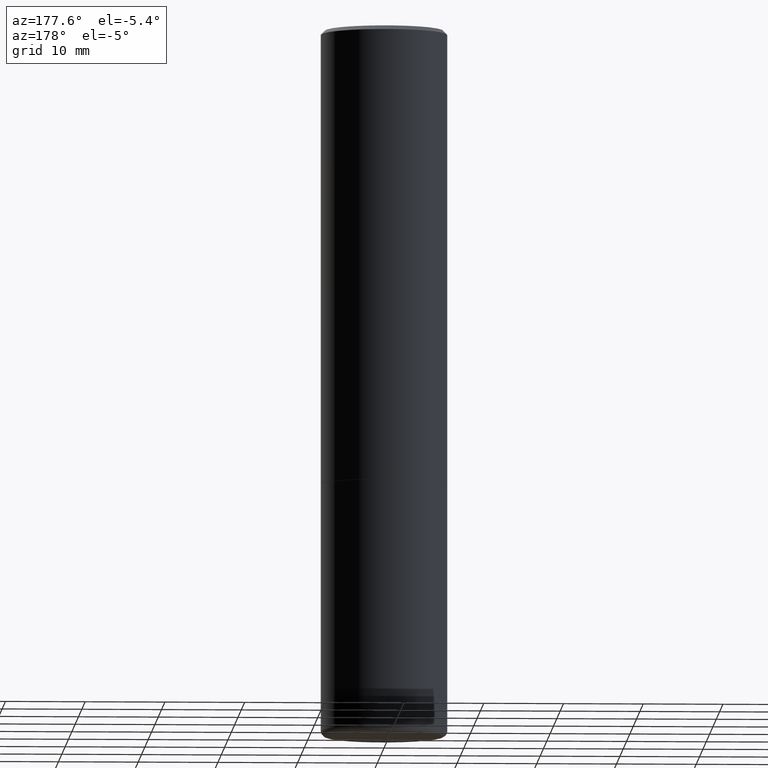
[diagram: clean part render]
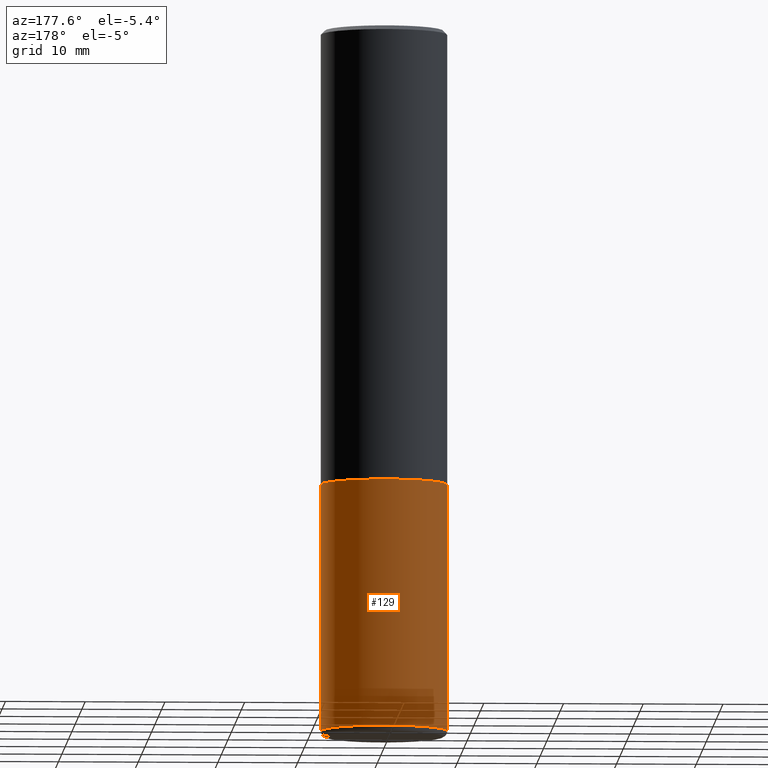
[diagram: same view with one face highlighted and labeled with its STEP entity id]
A machine part, auxiliary view. The second image highlights one B-rep face of the part: STEP entity #129.
In plain terms, the highlighted cylindrical surface (partial cylindrical patch) has radius 7.9375 mm, axis along (-0, 0, 1).
Its self-contained STEP definition (entity closure, byte-faithful):
#1 = CIRCLE ( 'NONE', #438, 0.3125000000000000000 ) ;
#28 = ORIENTED_EDGE ( 'NONE', *, *, #368, .F. ) ;
#58 = LINE ( 'NONE', #165, #60 ) ;
#60 = VECTOR ( 'NONE', #128, 39.37007874015748143 ) ;
#61 = VERTEX_POINT ( 'NONE', #132 ) ;
#66 = DIRECTION ( 'NONE',  ( 1.000000000000000000, -6.982962677686266711E-15, 4.876176775795936353E-29 ) ) ;
#77 = VERTEX_POINT ( 'NONE', #133 ) ;
#87 = ORIENTED_EDGE ( 'NONE', *, *, #397, .T. ) ;
#93 = DIRECTION ( 'NONE',  ( -2.445468806185136597E-29, 3.491481338843145583E-15, 1.000000000000000000 ) ) ;
#95 = EDGE_CURVE ( 'NONE', #77, #189, #423, .T. ) ;
#107 = CARTESIAN_POINT ( 'NONE',  ( -0.3125000000000000000, -7.765262354148530218E-15, -3.470041113957361922 ) ) ;
#118 = VERTEX_POINT ( 'NONE', #437 ) ;
#128 = DIRECTION ( 'NONE',  ( -2.445468806185136877E-29, 3.491481338843145188E-15, 1.000000000000000000 ) ) ;
#129 = ADVANCED_FACE ( 'NONE', ( #307 ), #138, .T. ) ;
#132 = CARTESIAN_POINT ( 'NONE',  ( -0.3125000000000000000, -7.765262354148530218E-15, -2.249999999999999556 ) ) ;
#133 = CARTESIAN_POINT ( 'NONE',  ( 0.3125000000000000000, -1.429775963117756807E-14, -3.470041113957361922 ) ) ;
#134 = VECTOR ( 'NONE', #228, 39.37007874015748143 ) ;
#138 = CYLINDRICAL_SURFACE ( 'NONE', #383, 0.3125000000000000000 ) ;
#140 = CARTESIAN_POINT ( 'NONE',  ( 0.000000000000000000, 0.000000000000000000, 0.000000000000000000 ) ) ;
#154 = CARTESIAN_POINT ( 'NONE',  ( 5.502304813916556222E-29, -7.855833012397075293E-15, -2.249999999999999556 ) ) ;
#165 = CARTESIAN_POINT ( 'NONE',  ( -0.3125000000000000000, 2.220446049250313081E-15, -1.537167215704658232E-29 ) ) ;
#184 = DIRECTION ( 'NONE',  ( -2.445468806185136597E-29, 3.491481338843145583E-15, 1.000000000000000000 ) ) ;
#185 = LINE ( 'NONE', #272, #134 ) ;
#189 = VERTEX_POINT ( 'NONE', #107 ) ;
#191 = EDGE_LOOP ( 'NONE', ( #261, #87, #336, #28 ) ) ;
#228 = DIRECTION ( 'NONE',  ( -2.445468806185136877E-29, 3.491481338843145188E-15, 1.000000000000000000 ) ) ;
#238 = DIRECTION ( 'NONE',  ( -2.445468806185136597E-29, 3.491481338843145583E-15, 1.000000000000000000 ) ) ;
#261 = ORIENTED_EDGE ( 'NONE', *, *, #95, .T. ) ;
#272 = CARTESIAN_POINT ( 'NONE',  ( 0.3125000000000000000, -2.182175836776958347E-15, 1.523805242436230075E-29 ) ) ;
#307 = FACE_OUTER_BOUND ( 'NONE', #191, .T. ) ;
#336 = ORIENTED_EDGE ( 'NONE', *, *, #431, .F. ) ;
#349 = DIRECTION ( 'NONE',  ( 1.000000000000000000, -6.982962677686269077E-15, 0.000000000000000000 ) ) ;
#368 = EDGE_CURVE ( 'NONE', #77, #118, #185, .T. ) ;
#383 = AXIS2_PLACEMENT_3D ( 'NONE', #140, #238, #66 ) ;
#397 = EDGE_CURVE ( 'NONE', #189, #61, #58, .T. ) ;
#399 = DIRECTION ( 'NONE',  ( 1.000000000000000000, -6.982962677686265133E-15, 0.000000000000000000 ) ) ;
#406 = CARTESIAN_POINT ( 'NONE',  ( 8.485877300362652309E-29, -1.211558379440060973E-14, -3.470041113957361922 ) ) ;
#423 = CIRCLE ( 'NONE', #428, 0.3125000000000000000 ) ;
#428 = AXIS2_PLACEMENT_3D ( 'NONE', #406, #93, #349 ) ;
#431 = EDGE_CURVE ( 'NONE', #118, #61, #1, .T. ) ;
#437 = CARTESIAN_POINT ( 'NONE',  ( 0.3125000000000000000, -1.003800884917403364E-14, -2.249999999999999556 ) ) ;
#438 = AXIS2_PLACEMENT_3D ( 'NONE', #154, #184, #399 ) ;